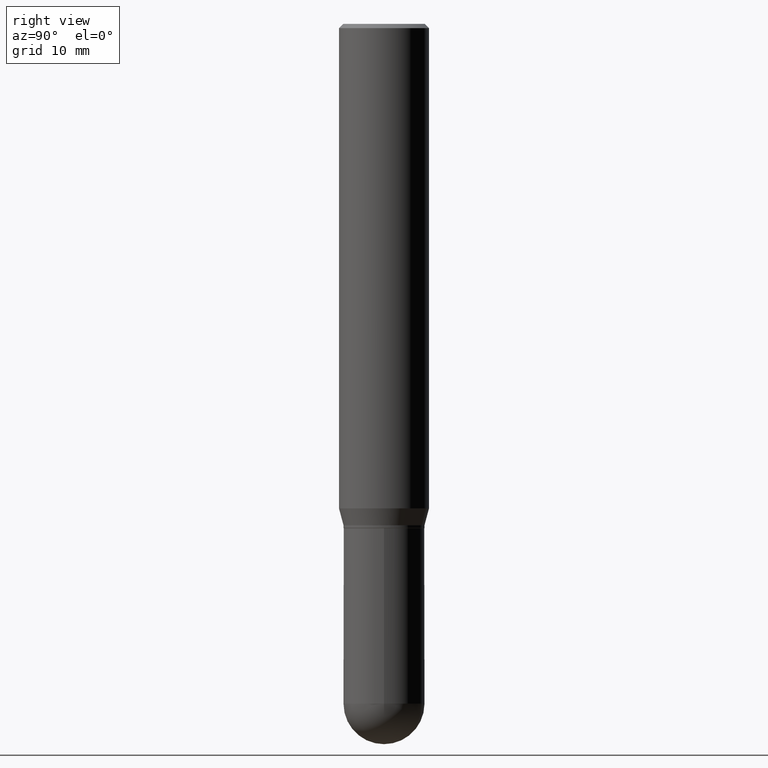
[diagram: clean part render]
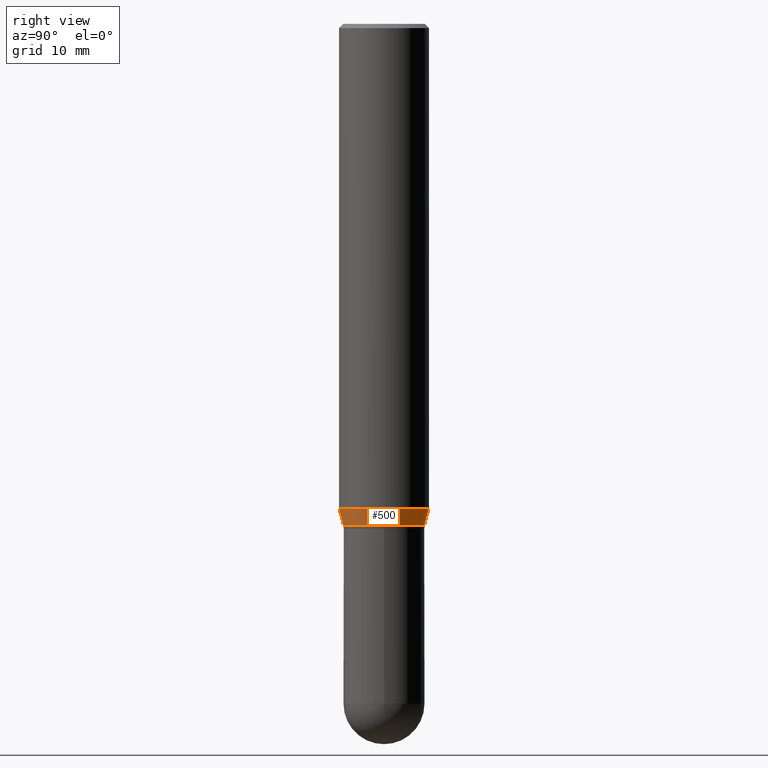
[diagram: same view with one face highlighted and labeled with its STEP entity id]
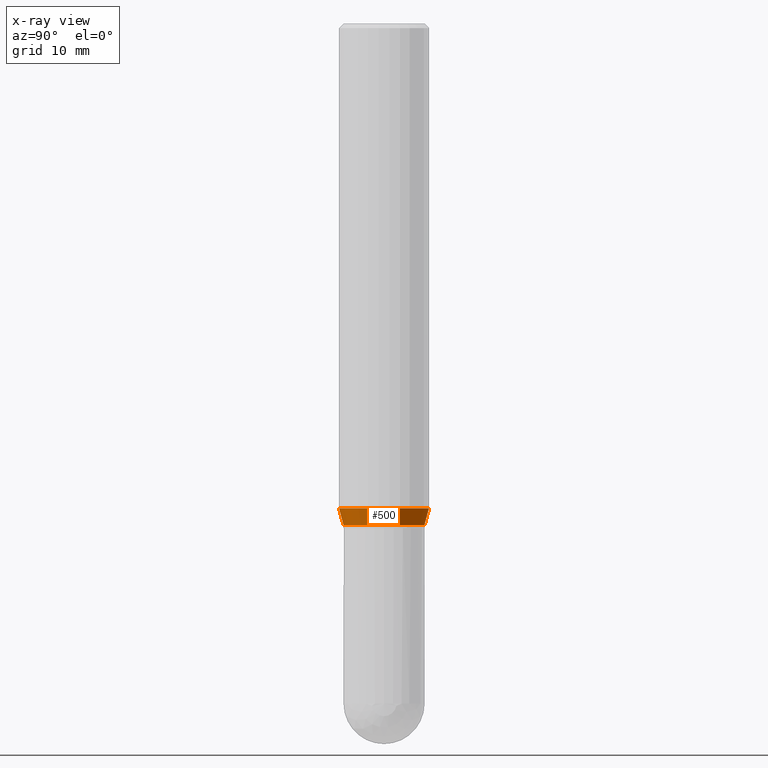
[diagram: x-ray of the same camera — body ghosted, the highlighted face saturated]
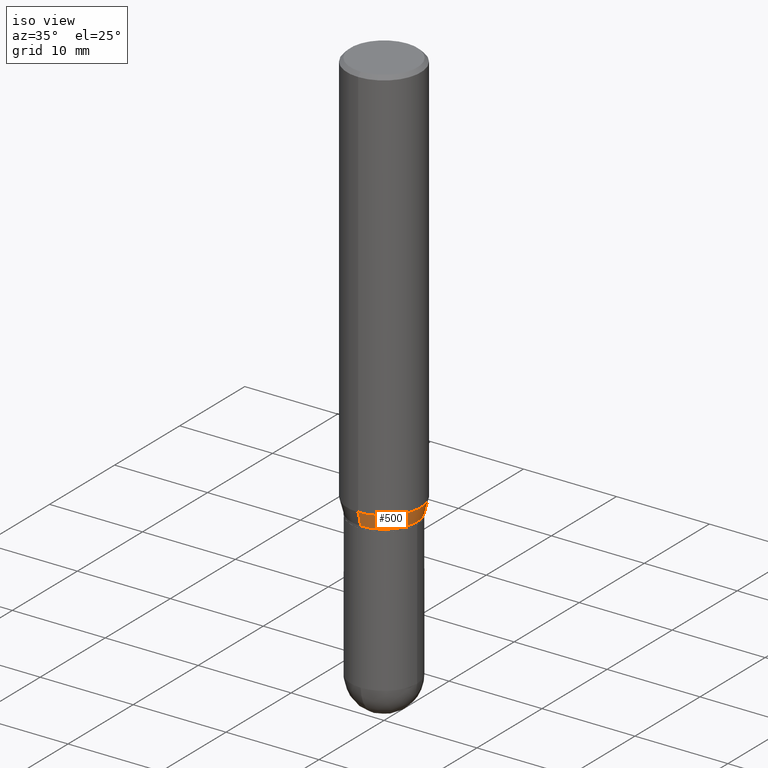
[diagram: same view with one face highlighted and labeled with its STEP entity id]
A machine part, right view. The second image highlights one B-rep face of the part: STEP entity #500.
The next image is the same camera in x-ray: the body ghosted, the highlighted face saturated — about 0% of this face is hidden behind the body in this view.
A second angle (iso view) of the same face is appended — the face is thin or edge-on in the first view.
In plain terms, the highlighted conical surface has half-angle 15 deg.
Its self-contained STEP definition (entity closure, byte-faithful):
#9 = ORIENTED_EDGE ( 'NONE', *, *, #46, .T. ) ;
#12 = FACE_OUTER_BOUND ( 'NONE', #251, .T. ) ;
#14 = LINE ( 'NONE', #407, #226 ) ;
#20 = VECTOR ( 'NONE', #425, 39.37007874015748143 ) ;
#22 = ORIENTED_EDGE ( 'NONE', *, *, #263, .F. ) ;
#28 = CARTESIAN_POINT ( 'NONE',  ( -1.091087918388437956E-15, -0.1562500000000058842, -1.681593404861546404 ) ) ;
#29 = DIRECTION ( 'NONE',  ( -2.445345981516174728E-29, 3.491657230759845150E-15, 1.000000000000000000 ) ) ;
#34 = CARTESIAN_POINT ( 'NONE',  ( 4.112077675122285455E-29, -5.871547771282887545E-15, -1.681593404861546848 ) ) ;
#45 = DIRECTION ( 'NONE',  ( -6.982962677686266711E-15, -1.000000000000000000, 3.885985766236507752E-15 ) ) ;
#46 = EDGE_CURVE ( 'NONE', #391, #67, #458, .T. ) ;
#47 = LINE ( 'NONE', #215, #20 ) ;
#67 = VERTEX_POINT ( 'NONE', #201 ) ;
#73 = DIRECTION ( 'NONE',  ( -2.445345981516174728E-29, 3.491657230759845150E-15, 1.000000000000000000 ) ) ;
#76 = EDGE_CURVE ( 'NONE', #391, #136, #47, .T. ) ;
#114 = CARTESIAN_POINT ( 'NONE',  ( 4.254902007838144106E-29, -6.075483581522130008E-15, -1.739999999999999991 ) ) ;
#122 = CARTESIAN_POINT ( 'NONE',  ( 1.110223024625197561E-15, 0.1562499999999941436, -1.681593404861547514 ) ) ;
#136 = VERTEX_POINT ( 'NONE', #28 ) ;
#162 = VERTEX_POINT ( 'NONE', #122 ) ;
#176 = DIRECTION ( 'NONE',  ( 1.839019923739597160E-15, 0.2588190451025245142, 0.9659258262890673130 ) ) ;
#201 = CARTESIAN_POINT ( 'NONE',  ( 1.054623055551970126E-15, 0.1405999999999938410, -1.740000000000000657 ) ) ;
#202 = ORIENTED_EDGE ( 'NONE', *, *, #76, .F. ) ;
#215 = CARTESIAN_POINT ( 'NONE',  ( -9.818045524826459157E-16, -0.1406000000000059980, -1.739999999999999547 ) ) ;
#226 = VECTOR ( 'NONE', #176, 39.37007874015748143 ) ;
#237 = DIRECTION ( 'NONE',  ( -6.982962677686266711E-15, -1.000000000000000000, 3.885985766236507752E-15 ) ) ;
#251 = EDGE_LOOP ( 'NONE', ( #9, #356, #22, #202 ) ) ;
#257 = DIRECTION ( 'NONE',  ( -2.445345981516174728E-29, 3.491657230759845150E-15, 1.000000000000000000 ) ) ;
#263 = EDGE_CURVE ( 'NONE', #136, #162, #414, .T. ) ;
#278 = AXIS2_PLACEMENT_3D ( 'NONE', #329, #257, #45 ) ;
#287 = AXIS2_PLACEMENT_3D ( 'NONE', #34, #29, #504 ) ;
#292 = CARTESIAN_POINT ( 'NONE',  ( -9.818045524826459157E-16, -0.1406000000000059980, -1.739999999999999547 ) ) ;
#318 = AXIS2_PLACEMENT_3D ( 'NONE', #114, #73, #237 ) ;
#329 = CARTESIAN_POINT ( 'NONE',  ( 4.254902007838144106E-29, -6.075483581522130008E-15, -1.739999999999999991 ) ) ;
#356 = ORIENTED_EDGE ( 'NONE', *, *, #510, .T. ) ;
#391 = VERTEX_POINT ( 'NONE', #292 ) ;
#407 = CARTESIAN_POINT ( 'NONE',  ( 9.990230864787428877E-16, 0.1405999999999938410, -1.740000000000000657 ) ) ;
#414 = CIRCLE ( 'NONE', #287, 0.1562500000000000000 ) ;
#425 = DIRECTION ( 'NONE',  ( -1.807323732225326984E-15, -0.2588190451025177419, 0.9659258262890690894 ) ) ;
#458 = CIRCLE ( 'NONE', #318, 0.1405999999999999195 ) ;
#500 = ADVANCED_FACE ( 'NONE', ( #12 ), #502, .T. ) ;
#502 = CONICAL_SURFACE ( 'NONE', #278, 0.1405999999999999195, 0.2617993877991497964 ) ;
#504 = DIRECTION ( 'NONE',  ( -6.982962677686265133E-15, -1.000000000000000000, 3.496765431890256920E-15 ) ) ;
#510 = EDGE_CURVE ( 'NONE', #67, #162, #14, .T. ) ;